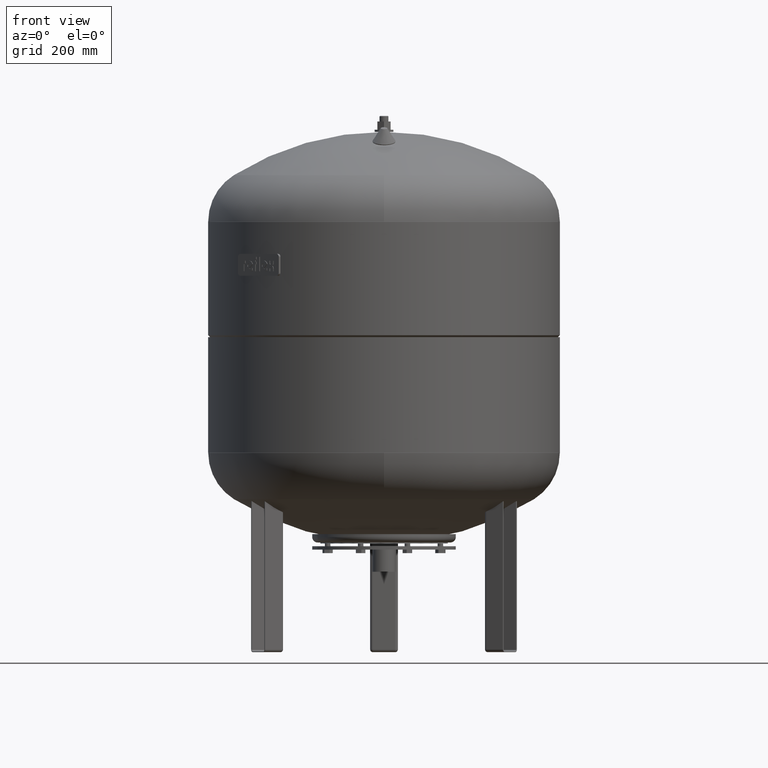
[diagram: clean part render]
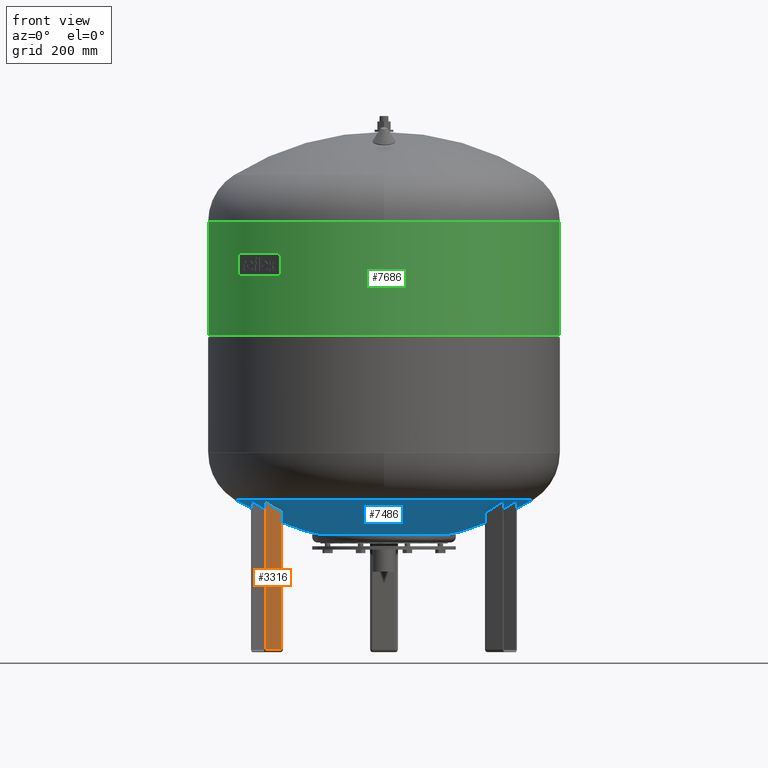
[diagram: same view with three faces highlighted in distinct colors, each labeled with its STEP entity id]
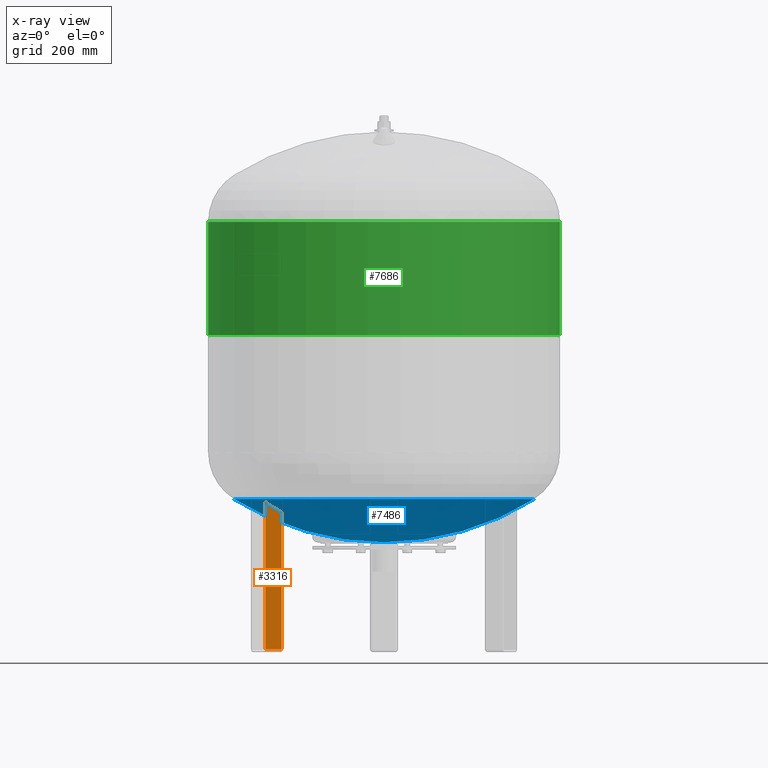
[diagram: x-ray of the same camera — body ghosted, the three highlighted faces saturated]
A machine part, front view with three faces highlighted in distinct colors.
The next image is the same camera in x-ray (body ghosted, the three faces saturated) — at least one of them is partly hidden behind the body in this view.
Their STEP definitions:

[orange] entity #3316 — the highlighted planar face has unit normal (0.5, -0.866, 0).
#2378=CARTESIAN_POINT('',(-213.965643089630760,-152.400635094610950,274.0));
#2379=VERTEX_POINT('',#2378);
#2387=CARTESIAN_POINT('',(-184.520779360959840,-135.400635094610980,274.0));
#2388=VERTEX_POINT('',#2387);
#2389=CARTESIAN_POINT('',(-184.520779360959840,-135.400635094610980,274.0));
#2390=DIRECTION('',(-0.866025403784439,-0.499999999999999,0.0));
#2391=VECTOR('',#2390,33.999999999999993);
#2392=LINE('',#2389,#2391);
#2393=EDGE_CURVE('',#2388,#2379,#2392,.T.);
#2823=CARTESIAN_POINT('',(-213.965643089630760,-152.400635094610950,5.000000000000004));
#2824=VERTEX_POINT('',#2823);
#2851=CARTESIAN_POINT('',(-213.965643089630760,-152.400635094610950,5.000000000000004));
#2852=DIRECTION('',(0.0,0.0,1.0));
#2853=VECTOR('',#2852,269.0);
#2854=LINE('',#2851,#2853);
#2855=EDGE_CURVE('',#2824,#2379,#2854,.T.);
#3051=CARTESIAN_POINT('',(-184.520779360959840,-135.400635094610980,5.000000000000004));
#3052=VERTEX_POINT('',#3051);
#3060=CARTESIAN_POINT('',(-184.520779360959840,-135.400635094610980,5.000000000000004));
#3061=DIRECTION('',(-0.866025403784439,-0.499999999999999,0.0));
#3062=VECTOR('',#3061,33.999999999999993);
#3063=LINE('',#3060,#3062);
#3064=EDGE_CURVE('',#3052,#2824,#3063,.T.);
#3186=CARTESIAN_POINT('',(-184.520779360959840,-135.400635094610980,5.000000000000004));
#3187=DIRECTION('',(0.0,0.0,1.0));
#3188=VECTOR('',#3187,269.0);
#3189=LINE('',#3186,#3188);
#3190=EDGE_CURVE('',#3052,#2388,#3189,.T.);
#3305=CARTESIAN_POINT('',(-180.190652342037650,-132.900635094610980,4.592425E-015));
#3306=DIRECTION('',(0.500000000000000,-0.866025403784439,1.836970E-016));
#3307=DIRECTION('',(0.866025403784439,0.500000000000000,-3.059170E-032));
#3308=AXIS2_PLACEMENT_3D('',#3305,#3306,#3307);
#3309=PLANE('',#3308);
#3310=ORIENTED_EDGE('',*,*,#2855,.F.);
#3311=ORIENTED_EDGE('',*,*,#3064,.F.);
#3312=ORIENTED_EDGE('',*,*,#3190,.T.);
#3313=ORIENTED_EDGE('',*,*,#2393,.T.);
#3314=EDGE_LOOP('',(#3310,#3311,#3312,#3313));
#3315=FACE_OUTER_BOUND('',#3314,.T.);
#3316=ADVANCED_FACE('',(#3315),#3309,.T.);

[blue] entity #7486 — the highlighted spherical surface has radius 509 mm.
#7425=CARTESIAN_POINT('',(8.065826E-015,-270.639024390243830,275.913560318702370));
#7426=VERTEX_POINT('',#7425);
#7442=CARTESIAN_POINT('',(-2.507680E-014,270.639024390243830,275.913560318702480));
#7443=VERTEX_POINT('',#7442);
#7451=CARTESIAN_POINT('',(-270.639024390243830,-1.431249E-014,275.913560318702420));
#7452=VERTEX_POINT('',#7451);
#7453=CARTESIAN_POINT('',(-7.495146E-015,-1.431249E-014,275.913560318702420));
#7454=DIRECTION('',(0.0,0.0,1.0));
#7455=DIRECTION('',(-1.0,0.0,0.0));
#7456=AXIS2_PLACEMENT_3D('',#7453,#7454,#7455);
#7457=CIRCLE('',#7456,270.639024390243830);
#7458=EDGE_CURVE('',#7443,#7452,#7457,.T.);
#7460=CARTESIAN_POINT('',(-7.495146E-015,-1.431249E-014,275.913560318702420));
#7461=DIRECTION('',(0.0,0.0,1.0));
#7462=DIRECTION('',(-1.0,0.0,0.0));
#7463=AXIS2_PLACEMENT_3D('',#7460,#7461,#7462);
#7464=CIRCLE('',#7463,270.639024390243830);
#7465=EDGE_CURVE('',#7452,#7426,#7464,.T.);
#7470=CARTESIAN_POINT('',(-1.005746E-013,-9.350178E-014,707.0));
#7471=DIRECTION('',(0.0,-1.0,0.0));
#7472=DIRECTION('',(1.0,0.0,0.0));
#7473=AXIS2_PLACEMENT_3D('',#7470,#7471,#7472);
#7474=SPHERICAL_SURFACE('',#7473,509.000000000000060);
#7475=ORIENTED_EDGE('',*,*,#7465,.F.);
#7476=ORIENTED_EDGE('',*,*,#7458,.F.);
#7477=CARTESIAN_POINT('',(-7.495146E-015,-1.431249E-014,275.913560318702420));
#7478=DIRECTION('',(0.0,0.0,1.0));
#7479=DIRECTION('',(-1.0,0.0,0.0));
#7480=AXIS2_PLACEMENT_3D('',#7477,#7478,#7479);
#7481=CIRCLE('',#7480,270.639024390243830);
#7482=EDGE_CURVE('',#7426,#7443,#7481,.T.);
#7483=ORIENTED_EDGE('',*,*,#7482,.F.);
#7484=EDGE_LOOP('',(#7475,#7476,#7483));
#7485=FACE_OUTER_BOUND('',#7484,.T.);
#7486=ADVANCED_FACE('',(#7485),#7474,.T.);

[green] entity #7686 — the highlighted cylindrical surface (partial cylindrical patch) has radius 317 mm, axis along (-0, 0, -1).
#7586=CARTESIAN_POINT('',(316.999999999999830,3.882130E-014,571.500000000000000));
#7587=VERTEX_POINT('',#7586);
#7603=CARTESIAN_POINT('',(-316.999999999999940,-1.282117E-018,571.500000000000000));
#7604=VERTEX_POINT('',#7603);
#7626=CARTESIAN_POINT('',(317.0,3.882130E-014,776.0));
#7627=VERTEX_POINT('',#7626);
#7628=CARTESIAN_POINT('',(316.999999999999830,3.882130E-014,571.500000000000000));
#7629=DIRECTION('',(0.0,0.0,1.0));
#7630=VECTOR('',#7629,204.500000000000000);
#7631=LINE('',#7628,#7630);
#7632=EDGE_CURVE('',#7587,#7627,#7631,.T.);
#7635=CARTESIAN_POINT('',(-316.999999999999940,-1.282117E-018,776.000000000000110));
#7636=VERTEX_POINT('',#7635);
#7637=CARTESIAN_POINT('',(-316.999999999999940,-1.282117E-018,571.500000000000000));
#7638=DIRECTION('',(0.0,0.0,1.0));
#7639=VECTOR('',#7638,204.500000000000110);
#7640=LINE('',#7637,#7639);
#7641=EDGE_CURVE('',#7604,#7636,#7640,.T.);
#7658=CARTESIAN_POINT('',(8.784689E-015,-2.043686E-030,776.000000000000110));
#7659=DIRECTION('',(0.0,0.0,-1.0));
#7660=DIRECTION('',(1.0,0.0,0.0));
#7661=AXIS2_PLACEMENT_3D('',#7658,#7659,#7660);
#7662=CIRCLE('',#7661,317.0);
#7663=EDGE_CURVE('',#7627,#7636,#7662,.T.);
#7669=CARTESIAN_POINT('',(5.224356E-015,-1.215404E-030,691.700000000000050));
#7670=DIRECTION('',(-4.223408E-017,9.825415E-033,-1.0));
#7671=DIRECTION('',(1.0,0.0,0.0));
#7672=AXIS2_PLACEMENT_3D('',#7669,#7670,#7671);
#7673=CYLINDRICAL_SURFACE('',#7672,316.999999999999940);
#7674=ORIENTED_EDGE('',*,*,#7632,.T.);
#7675=ORIENTED_EDGE('',*,*,#7663,.T.);
#7676=ORIENTED_EDGE('',*,*,#7641,.F.);
#7677=CARTESIAN_POINT('',(1.478193E-016,-3.438895E-032,571.500000000000000));
#7678=DIRECTION('',(0.0,0.0,-1.0));
#7679=DIRECTION('',(1.0,0.0,0.0));
#7680=AXIS2_PLACEMENT_3D('',#7677,#7678,#7679);
#7681=CIRCLE('',#7680,316.999999999999830);
#7682=EDGE_CURVE('',#7587,#7604,#7681,.T.);
#7683=ORIENTED_EDGE('',*,*,#7682,.F.);
#7684=EDGE_LOOP('',(#7674,#7675,#7676,#7683));
#7685=FACE_OUTER_BOUND('',#7684,.T.);
#7686=ADVANCED_FACE('',(#7685),#7673,.T.);